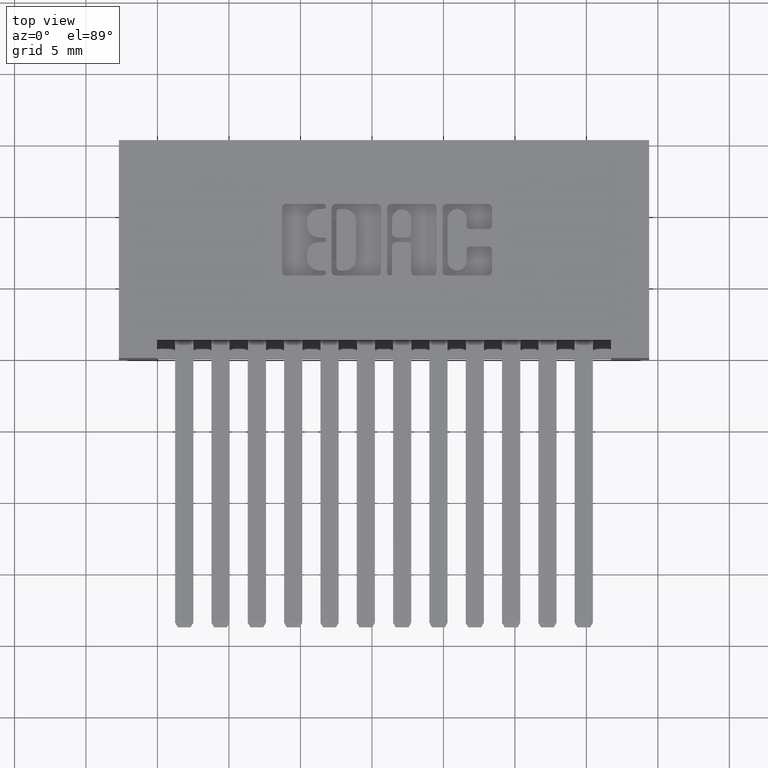
[diagram: clean part render]
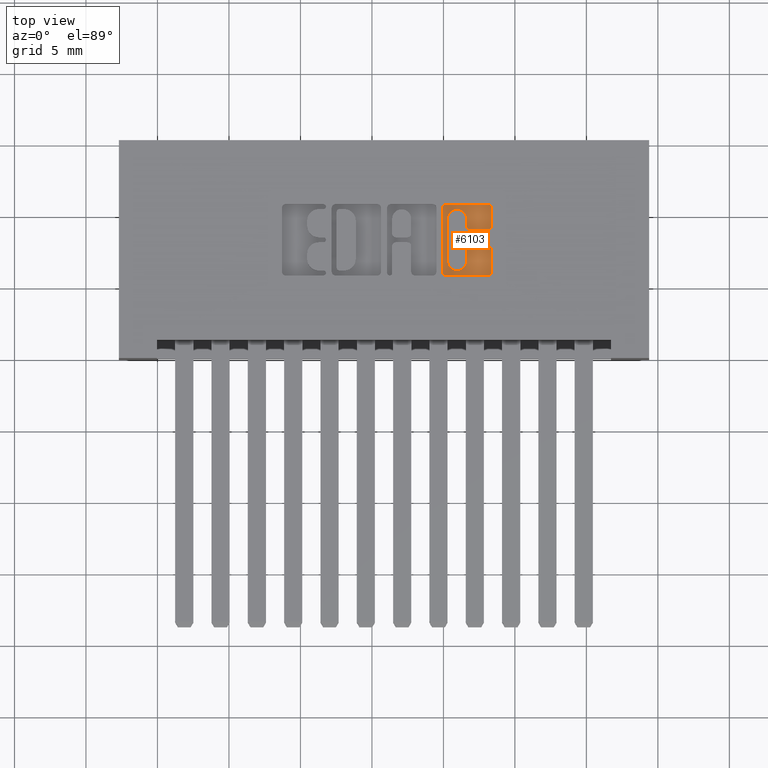
[diagram: same view with one face highlighted and labeled with its STEP entity id]
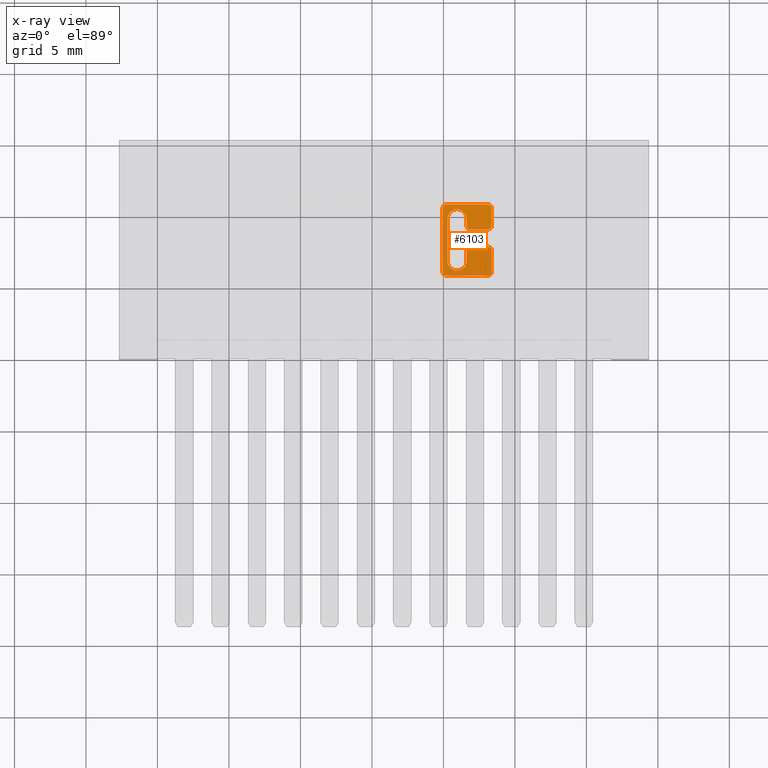
[diagram: x-ray of the same camera — body ghosted, the highlighted face saturated]
A machine part, top view. The second image highlights one B-rep face of the part: STEP entity #6103.
The next image is the same camera in x-ray: the body ghosted, the highlighted face saturated — about 0% of this face is hidden behind the body in this view.
In plain terms, the highlighted planar face has unit normal (0, 0, 1).
Its self-contained STEP definition (entity closure, byte-faithful):
#211 = DIRECTION ( 'NONE',  ( 1.000000000000000000, 0.0000000000000000000, 0.0000000000000000000 ) ) ;
#294 = CARTESIAN_POINT ( 'NONE',  ( 1.218721239177992000, 0.3831578459575293300, -0.01000000000000000000 ) ) ;
#317 = CARTESIAN_POINT ( 'NONE',  ( 1.254793827176967000, 0.3063502266127572900, -0.01000000000000000000 ) ) ;
#343 = DIRECTION ( 'NONE',  ( -0.0000000000000000000, 0.0000000000000000000, 1.000000000000000000 ) ) ;
#408 = CARTESIAN_POINT ( 'NONE',  ( 1.178722383097458500, 0.0000000000000000000, -0.01000000000000000000 ) ) ;
#466 = VECTOR ( 'NONE', #1409, 39.37007874015748100 ) ;
#535 = VECTOR ( 'NONE', #11763, 39.37007874015748100 ) ;
#668 = ORIENTED_EDGE ( 'NONE', *, *, #8635, .T. ) ;
#682 = ORIENTED_EDGE ( 'NONE', *, *, #10378, .T. ) ;
#733 = CIRCLE ( 'NONE', #4387, 0.009815670203839947000 ) ;
#744 = ORIENTED_EDGE ( 'NONE', *, *, #8999, .T. ) ;
#787 = FACE_OUTER_BOUND ( 'NONE', #4298, .T. ) ;
#796 = ORIENTED_EDGE ( 'NONE', *, *, #3737, .T. ) ;
#799 = ORIENTED_EDGE ( 'NONE', *, *, #2771, .T. ) ;
#809 = ORIENTED_EDGE ( 'NONE', *, *, #11949, .T. ) ;
#825 = EDGE_CURVE ( 'NONE', #10758, #2767, #7054, .T. ) ;
#848 = ORIENTED_EDGE ( 'NONE', *, *, #1557, .T. ) ;
#861 = ORIENTED_EDGE ( 'NONE', *, *, #12490, .T. ) ;
#867 = VECTOR ( 'NONE', #5015, 39.37007874015748100 ) ;
#930 = LINE ( 'NONE', #6818, #11434 ) ;
#944 = ORIENTED_EDGE ( 'NONE', *, *, #2320, .T. ) ;
#954 = ORIENTED_EDGE ( 'NONE', *, *, #825, .T. ) ;
#958 = ORIENTED_EDGE ( 'NONE', *, *, #12758, .T. ) ;
#980 = EDGE_CURVE ( 'NONE', #3331, #2638, #6076, .T. ) ;
#997 = ORIENTED_EDGE ( 'NONE', *, *, #980, .T. ) ;
#1125 = ORIENTED_EDGE ( 'NONE', *, *, #4340, .T. ) ;
#1137 = ORIENTED_EDGE ( 'NONE', *, *, #11899, .T. ) ;
#1154 = ORIENTED_EDGE ( 'NONE', *, *, #3959, .T. ) ;
#1197 = DIRECTION ( 'NONE',  ( 1.000000000000000000, 0.0000000000000000000, 0.0000000000000000000 ) ) ;
#1208 = ORIENTED_EDGE ( 'NONE', *, *, #1649, .F. ) ;
#1248 = ORIENTED_EDGE ( 'NONE', *, *, #8448, .T. ) ;
#1305 = ORIENTED_EDGE ( 'NONE', *, *, #5529, .F. ) ;
#1316 = ORIENTED_EDGE ( 'NONE', *, *, #12249, .T. ) ;
#1319 = ORIENTED_EDGE ( 'NONE', *, *, #4112, .T. ) ;
#1409 = DIRECTION ( 'NONE',  ( 0.0000000000000000000, -1.000000000000000000, 0.0000000000000000000 ) ) ;
#1480 = CARTESIAN_POINT ( 'NONE',  ( 1.254793827176977400, 0.3539562271012333700, -0.01000000000000000000 ) ) ;
#1519 = CARTESIAN_POINT ( 'NONE',  ( 1.314178631909940000, 0.2965345564089702000, -0.01000000000000000000 ) ) ;
#1544 = LINE ( 'NONE', #10031, #6512 ) ;
#1557 = EDGE_CURVE ( 'NONE', #4315, #11526, #8519, .T. ) ;
#1649 = EDGE_CURVE ( 'NONE', #6731, #9532, #4667, .T. ) ;
#1778 = DIRECTION ( 'NONE',  ( 1.000000000000000000, 0.0000000000000000000, 0.0000000000000000000 ) ) ;
#1877 = VECTOR ( 'NONE', #10918, 39.37007874015748100 ) ;
#2010 = LINE ( 'NONE', #12417, #9946 ) ;
#2215 = VERTEX_POINT ( 'NONE', #1480 ) ;
#2320 = EDGE_CURVE ( 'NONE', #10764, #10758, #930, .T. ) ;
#2364 = AXIS2_PLACEMENT_3D ( 'NONE', #11811, #5938, #12706 ) ;
#2586 = AXIS2_PLACEMENT_3D ( 'NONE', #8000, #4374, #8779 ) ;
#2638 = VERTEX_POINT ( 'NONE', #4522 ) ;
#2736 = DIRECTION ( 'NONE',  ( 1.000000000000000000, 0.0000000000000000000, 0.0000000000000000000 ) ) ;
#2767 = VERTEX_POINT ( 'NONE', #12066 ) ;
#2771 = EDGE_CURVE ( 'NONE', #7965, #10040, #9841, .T. ) ;
#2810 = CARTESIAN_POINT ( 'NONE',  ( 1.188538053301299200, 0.4133410318342098400, -0.01000000000000000000 ) ) ;
#2907 = CARTESIAN_POINT ( 'NONE',  ( 1.244978156973165700, 0.0000000000000000000, -0.01000000000000000000 ) ) ;
#2953 = AXIS2_PLACEMENT_3D ( 'NONE', #294, #10278, #211 ) ;
#2976 = VERTEX_POINT ( 'NONE', #8489 ) ;
#3061 = AXIS2_PLACEMENT_3D ( 'NONE', #2810, #10027, #3832 ) ;
#3166 = VECTOR ( 'NONE', #6762, 39.37007874015748100 ) ;
#3331 = VERTEX_POINT ( 'NONE', #1519 ) ;
#3479 = CARTESIAN_POINT ( 'NONE',  ( 1.304362961706168300, 0.4231567020380507800, -0.01000000000000000000 ) ) ;
#3550 = CARTESIAN_POINT ( 'NONE',  ( 1.304362961706134300, 0.2366589681657896800, -0.01000000000000000000 ) ) ;
#3622 = LINE ( 'NONE', #3708, #535 ) ;
#3708 = CARTESIAN_POINT ( 'NONE',  ( 1.314178631909940000, 0.0000000000000000000, -0.01000000000000000000 ) ) ;
#3719 = VERTEX_POINT ( 'NONE', #8117 ) ;
#3721 = CARTESIAN_POINT ( 'NONE',  ( 1.254793827176977400, 0.3637718973050449400, -0.01000000000000000000 ) ) ;
#3722 = VERTEX_POINT ( 'NONE', #10713 ) ;
#3737 = EDGE_CURVE ( 'NONE', #3722, #7965, #733, .T. ) ;
#3743 = AXIS2_PLACEMENT_3D ( 'NONE', #10456, #12663, #5358 ) ;
#3832 = DIRECTION ( 'NONE',  ( 1.000000000000000000, 0.0000000000000000000, 0.0000000000000000000 ) ) ;
#3959 = EDGE_CURVE ( 'NONE', #3719, #9532, #1544, .T. ) ;
#4109 = CIRCLE ( 'NONE', #3061, 0.009815670203840767500 ) ;
#4112 = EDGE_CURVE ( 'NONE', #7749, #2215, #10813, .T. ) ;
#4246 = CARTESIAN_POINT ( 'NONE',  ( 1.188538053301265300, 0.2366589681657896800, -0.01000000000000000000 ) ) ;
#4298 = EDGE_LOOP ( 'NONE', ( #668, #682, #744, #796, #799, #809, #848, #861, #944, #954, #958, #997, #1125, #1137, #1154, #1208, #1248, #1305, #1316, #1319 ) ) ;
#4315 = VERTEX_POINT ( 'NONE', #10737 ) ;
#4340 = EDGE_CURVE ( 'NONE', #2638, #11606, #11968, .T. ) ;
#4347 = DIRECTION ( 'NONE',  ( -0.0000000000000000000, 0.0000000000000000000, 1.000000000000000000 ) ) ;
#4374 = DIRECTION ( 'NONE',  ( -0.0000000000000000000, 0.0000000000000000000, 1.000000000000000000 ) ) ;
#4387 = AXIS2_PLACEMENT_3D ( 'NONE', #6449, #5716, #5764 ) ;
#4433 = CIRCLE ( 'NONE', #2364, 0.009815670203788042300 ) ;
#4487 = CARTESIAN_POINT ( 'NONE',  ( 1.304362961706134300, 0.2268432979619829400, -0.01000000000000000000 ) ) ;
#4522 = CARTESIAN_POINT ( 'NONE',  ( 1.304362961706156700, 0.3063502266127572900, -0.01000000000000000000 ) ) ;
#4667 = CIRCLE ( 'NONE', #2586, 0.02625691779518022500 ) ;
#4700 = VERTEX_POINT ( 'NONE', #12335 ) ;
#4960 = VECTOR ( 'NONE', #5532, 39.37007874015748100 ) ;
#5015 = DIRECTION ( 'NONE',  ( 0.0000000000000000000, -1.000000000000000000, 0.0000000000000000000 ) ) ;
#5096 = CARTESIAN_POINT ( 'NONE',  ( 1.304362961706166900, 0.3637718973050383900, -0.01000000000000000000 ) ) ;
#5358 = DIRECTION ( 'NONE',  ( 1.000000000000000000, 0.0000000000000000000, 0.0000000000000000000 ) ) ;
#5369 = DIRECTION ( 'NONE',  ( 1.000000000000000000, 0.0000000000000000000, 0.0000000000000000000 ) ) ;
#5440 = CIRCLE ( 'NONE', #2953, 0.02625691779517367100 ) ;
#5529 = EDGE_CURVE ( 'NONE', #4700, #2976, #5440, .T. ) ;
#5532 = DIRECTION ( 'NONE',  ( 0.0000000000000000000, 1.000000000000000000, -0.0000000000000000000 ) ) ;
#5533 = CARTESIAN_POINT ( 'NONE',  ( 1.314178631909972000, 0.3637718973050383900, -0.01000000000000000000 ) ) ;
#5700 = AXIS2_PLACEMENT_3D ( 'NONE', #3550, #4347, #2736 ) ;
#5716 = DIRECTION ( 'NONE',  ( -0.0000000000000000000, 0.0000000000000000000, 1.000000000000000000 ) ) ;
#5764 = DIRECTION ( 'NONE',  ( 1.000000000000000000, 0.0000000000000000000, 0.0000000000000000000 ) ) ;
#5938 = DIRECTION ( 'NONE',  ( -0.0000000000000000000, 0.0000000000000000000, 1.000000000000000000 ) ) ;
#6076 = CIRCLE ( 'NONE', #7090, 0.009815670203786949400 ) ;
#6103 = ADVANCED_FACE ( 'NONE', ( #787 ), #12699, .T. ) ;
#6192 = DIRECTION ( 'NONE',  ( 1.000000000000000000, 0.0000000000000000000, 0.0000000000000000000 ) ) ;
#6428 = VERTEX_POINT ( 'NONE', #9540 ) ;
#6449 = CARTESIAN_POINT ( 'NONE',  ( 1.304362961706132100, 0.4133410318342106700, -0.01000000000000000000 ) ) ;
#6512 = VECTOR ( 'NONE', #9991, 39.37007874015748100 ) ;
#6586 = AXIS2_PLACEMENT_3D ( 'NONE', #3721, #343, #1197 ) ;
#6642 = DIRECTION ( 'NONE',  ( 0.0000000000000000000, 1.000000000000000000, -0.0000000000000000000 ) ) ;
#6678 = CIRCLE ( 'NONE', #12292, 0.009815670203804980100 ) ;
#6731 = VERTEX_POINT ( 'NONE', #9857 ) ;
#6762 = DIRECTION ( 'NONE',  ( 1.000000000000000000, 0.0000000000000000000, 0.0000000000000000000 ) ) ;
#6818 = CARTESIAN_POINT ( 'NONE',  ( 0.0000000000000000000, 0.2268432979619829400, -0.01000000000000000000 ) ) ;
#7054 = CIRCLE ( 'NONE', #5700, 0.009815670203806345400 ) ;
#7066 = VERTEX_POINT ( 'NONE', #5533 ) ;
#7090 = AXIS2_PLACEMENT_3D ( 'NONE', #11575, #11539, #11464 ) ;
#7749 = VERTEX_POINT ( 'NONE', #8316 ) ;
#7820 = LINE ( 'NONE', #8599, #4960 ) ;
#7965 = VERTEX_POINT ( 'NONE', #3479 ) ;
#8000 = CARTESIAN_POINT ( 'NONE',  ( 1.218721239177998700, 0.2668421540424527600, -0.01000000000000000000 ) ) ;
#8108 = DIRECTION ( 'NONE',  ( -1.000000000000000000, 0.0000000000000000000, 0.0000000000000000000 ) ) ;
#8117 = CARTESIAN_POINT ( 'NONE',  ( 1.244978156973178800, 0.2965345564089684200, -0.01000000000000000000 ) ) ;
#8316 = CARTESIAN_POINT ( 'NONE',  ( 1.244978156973165700, 0.3637718973050449400, -0.01000000000000000000 ) ) ;
#8448 = EDGE_CURVE ( 'NONE', #6731, #2976, #7820, .T. ) ;
#8489 = CARTESIAN_POINT ( 'NONE',  ( 1.192464321382818300, 0.3831578459575293300, -0.01000000000000000000 ) ) ;
#8519 = LINE ( 'NONE', #408, #466 ) ;
#8599 = CARTESIAN_POINT ( 'NONE',  ( 1.192464321382818300, 0.0000000000000000000, -0.01000000000000000000 ) ) ;
#8635 = EDGE_CURVE ( 'NONE', #2215, #6428, #8757, .T. ) ;
#8757 = LINE ( 'NONE', #10683, #3166 ) ;
#8779 = DIRECTION ( 'NONE',  ( 1.000000000000000000, 0.0000000000000000000, 0.0000000000000000000 ) ) ;
#8886 = CARTESIAN_POINT ( 'NONE',  ( 1.244978156973178800, 0.2668421540424527600, -0.01000000000000000000 ) ) ;
#8999 = EDGE_CURVE ( 'NONE', #7066, #3722, #2010, .T. ) ;
#9053 = CARTESIAN_POINT ( 'NONE',  ( 0.0000000000000000000, 0.4231567020380507800, -0.01000000000000000000 ) ) ;
#9190 = VECTOR ( 'NONE', #8108, 39.37007874015748100 ) ;
#9532 = VERTEX_POINT ( 'NONE', #8886 ) ;
#9540 = CARTESIAN_POINT ( 'NONE',  ( 1.304362961706166900, 0.3539562271012333700, -0.01000000000000000000 ) ) ;
#9841 = LINE ( 'NONE', #9053, #1877 ) ;
#9857 = CARTESIAN_POINT ( 'NONE',  ( 1.192464321382818300, 0.2668421540424527600, -0.01000000000000000000 ) ) ;
#9946 = VECTOR ( 'NONE', #6642, 39.37007874015748100 ) ;
#9975 = AXIS2_PLACEMENT_3D ( 'NONE', #4246, #11313, #5369 ) ;
#9991 = DIRECTION ( 'NONE',  ( 0.0000000000000000000, -1.000000000000000000, 0.0000000000000000000 ) ) ;
#10027 = DIRECTION ( 'NONE',  ( -0.0000000000000000000, 0.0000000000000000000, 1.000000000000000000 ) ) ;
#10031 = CARTESIAN_POINT ( 'NONE',  ( 1.244978156973178800, 0.0000000000000000000, -0.01000000000000000000 ) ) ;
#10040 = VERTEX_POINT ( 'NONE', #10741 ) ;
#10278 = DIRECTION ( 'NONE',  ( -0.0000000000000000000, 0.0000000000000000000, 1.000000000000000000 ) ) ;
#10370 = CARTESIAN_POINT ( 'NONE',  ( 0.0000000000000000000, 0.3063502266127572900, -0.01000000000000000000 ) ) ;
#10378 = EDGE_CURVE ( 'NONE', #6428, #7066, #6678, .T. ) ;
#10456 = CARTESIAN_POINT ( 'NONE',  ( 0.0000000000000000000, 0.0000000000000000000, -0.01000000000000000000 ) ) ;
#10683 = CARTESIAN_POINT ( 'NONE',  ( 0.0000000000000000000, 0.3539562271012333700, -0.01000000000000000000 ) ) ;
#10713 = CARTESIAN_POINT ( 'NONE',  ( 1.314178631909972000, 0.4133410318341945700, -0.01000000000000000000 ) ) ;
#10737 = CARTESIAN_POINT ( 'NONE',  ( 1.178722383097458500, 0.4133410318342098400, -0.01000000000000000000 ) ) ;
#10741 = CARTESIAN_POINT ( 'NONE',  ( 1.188538053301299200, 0.4231567020380507800, -0.01000000000000000000 ) ) ;
#10758 = VERTEX_POINT ( 'NONE', #4487 ) ;
#10764 = VERTEX_POINT ( 'NONE', #12458 ) ;
#10813 = CIRCLE ( 'NONE', #6586, 0.009815670203811535700 ) ;
#10918 = DIRECTION ( 'NONE',  ( -1.000000000000000000, 0.0000000000000000000, 0.0000000000000000000 ) ) ;
#11313 = DIRECTION ( 'NONE',  ( -0.0000000000000000000, 0.0000000000000000000, 1.000000000000000000 ) ) ;
#11434 = VECTOR ( 'NONE', #1778, 39.37007874015748100 ) ;
#11464 = DIRECTION ( 'NONE',  ( 1.000000000000000000, 0.0000000000000000000, 0.0000000000000000000 ) ) ;
#11525 = CIRCLE ( 'NONE', #9975, 0.009815670203806754800 ) ;
#11526 = VERTEX_POINT ( 'NONE', #12330 ) ;
#11539 = DIRECTION ( 'NONE',  ( -0.0000000000000000000, 0.0000000000000000000, 1.000000000000000000 ) ) ;
#11575 = CARTESIAN_POINT ( 'NONE',  ( 1.304362961706153200, 0.2965345564089702000, -0.01000000000000000000 ) ) ;
#11606 = VERTEX_POINT ( 'NONE', #317 ) ;
#11680 = LINE ( 'NONE', #2907, #867 ) ;
#11763 = DIRECTION ( 'NONE',  ( 0.0000000000000000000, 1.000000000000000000, -0.0000000000000000000 ) ) ;
#11811 = CARTESIAN_POINT ( 'NONE',  ( 1.254793827176967000, 0.2965345564089693100, -0.01000000000000000000 ) ) ;
#11899 = EDGE_CURVE ( 'NONE', #11606, #3719, #4433, .T. ) ;
#11949 = EDGE_CURVE ( 'NONE', #10040, #4315, #4109, .T. ) ;
#11968 = LINE ( 'NONE', #10370, #9190 ) ;
#12029 = DIRECTION ( 'NONE',  ( -0.0000000000000000000, 0.0000000000000000000, 1.000000000000000000 ) ) ;
#12066 = CARTESIAN_POINT ( 'NONE',  ( 1.314178631909940000, 0.2366589681657827200, -0.01000000000000000000 ) ) ;
#12249 = EDGE_CURVE ( 'NONE', #4700, #7749, #11680, .T. ) ;
#12292 = AXIS2_PLACEMENT_3D ( 'NONE', #5096, #12029, #6192 ) ;
#12330 = CARTESIAN_POINT ( 'NONE',  ( 1.178722383097458500, 0.2366589681657896800, -0.01000000000000000000 ) ) ;
#12335 = CARTESIAN_POINT ( 'NONE',  ( 1.244978156973165700, 0.3831578454992596900, -0.01000000000000000000 ) ) ;
#12417 = CARTESIAN_POINT ( 'NONE',  ( 1.314178631909972000, 0.0000000000000000000, -0.01000000000000000000 ) ) ;
#12458 = CARTESIAN_POINT ( 'NONE',  ( 1.188538053301265300, 0.2268432979619829400, -0.01000000000000000000 ) ) ;
#12490 = EDGE_CURVE ( 'NONE', #11526, #10764, #11525, .T. ) ;
#12663 = DIRECTION ( 'NONE',  ( -0.0000000000000000000, 0.0000000000000000000, 1.000000000000000000 ) ) ;
#12699 = PLANE ( 'NONE',  #3743 ) ;
#12706 = DIRECTION ( 'NONE',  ( 1.000000000000000000, 0.0000000000000000000, 0.0000000000000000000 ) ) ;
#12758 = EDGE_CURVE ( 'NONE', #2767, #3331, #3622, .T. ) ;